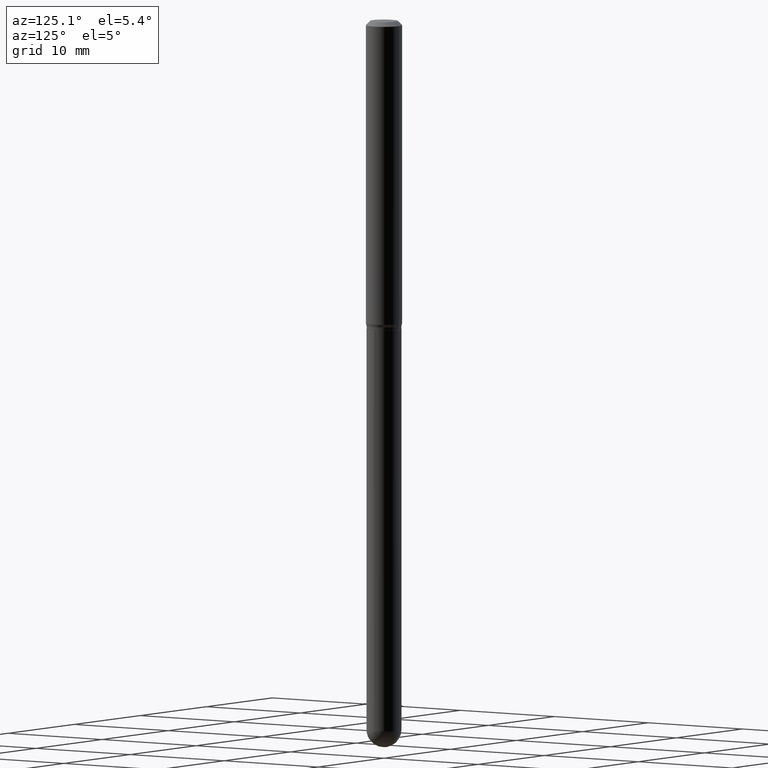
[diagram: clean part render]
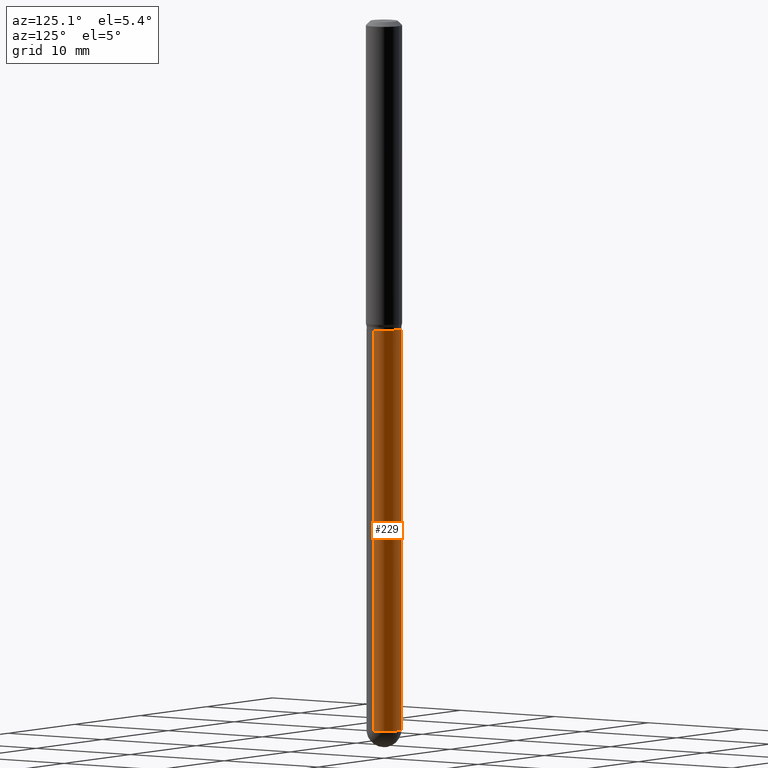
[diagram: same view with one face highlighted and labeled with its STEP entity id]
A machine part, auxiliary view. The second image highlights one B-rep face of the part: STEP entity #229.
In plain terms, the highlighted cylindrical surface (edge-blend (fillet) strip) has radius 1.524 mm, axis along (-0, 0, 1).
Its self-contained STEP definition (entity closure, byte-faithful):
#3 = ORIENTED_EDGE ( 'NONE', *, *, #87, .T. ) ;
#31 = CARTESIAN_POINT ( 'NONE',  ( 5.966943887091733341E-29, -8.519214466777275048E-15, -2.440000000000000391 ) ) ;
#47 = EDGE_CURVE ( 'NONE', #66, #49, #178, .T. ) ;
#49 = VERTEX_POINT ( 'NONE', #469 ) ;
#66 = VERTEX_POINT ( 'NONE', #193 ) ;
#84 = LINE ( 'NONE', #387, #352 ) ;
#87 = EDGE_CURVE ( 'NONE', #104, #49, #84, .T. ) ;
#97 = ORIENTED_EDGE ( 'NONE', *, *, #119, .T. ) ;
#104 = VERTEX_POINT ( 'NONE', #437 ) ;
#106 = ORIENTED_EDGE ( 'NONE', *, *, #482, .T. ) ;
#118 = CARTESIAN_POINT ( 'NONE',  ( 2.592196934556245308E-29, -3.700970219173735083E-15, -1.060000000000000275 ) ) ;
#119 = EDGE_CURVE ( 'NONE', #135, #104, #200, .T. ) ;
#130 = EDGE_CURVE ( 'NONE', #371, #66, #391, .T. ) ;
#135 = VERTEX_POINT ( 'NONE', #308 ) ;
#152 = DIRECTION ( 'NONE',  ( -2.445468806185136597E-29, 3.491481338843145583E-15, 1.000000000000000000 ) ) ;
#154 = EDGE_LOOP ( 'NONE', ( #97, #3, #485, #196, #106 ) ) ;
#155 = DIRECTION ( 'NONE',  ( 1.000000000000000000, -6.982962677686266711E-15, 4.876176775795935793E-29 ) ) ;
#160 = DIRECTION ( 'NONE',  ( -2.445468806185136597E-29, 3.491481338843145583E-15, 1.000000000000000000 ) ) ;
#171 = CARTESIAN_POINT ( 'NONE',  ( 0.06000000000000001166, -6.529070103636681305E-15, -2.440000000000000391 ) ) ;
#178 = CIRCLE ( 'NONE', #374, 0.05999999999999999778 ) ;
#183 = DIRECTION ( 'NONE',  ( -2.445468806185136877E-29, 3.491481338843145188E-15, 1.000000000000000000 ) ) ;
#186 = VECTOR ( 'NONE', #183, 39.37007874015748143 ) ;
#193 = CARTESIAN_POINT ( 'NONE',  ( 0.05999999999999999778, -4.119947979834910928E-15, -1.060000000000000275 ) ) ;
#196 = ORIENTED_EDGE ( 'NONE', *, *, #130, .F. ) ;
#197 = CARTESIAN_POINT ( 'NONE',  ( 0.06000000000000001166, -4.189777606611760914E-16, 2.925706065477562106E-30 ) ) ;
#200 = CIRCLE ( 'NONE', #487, 0.06000000000000001166 ) ;
#229 = ADVANCED_FACE ( 'NONE', ( #478 ), #354, .T. ) ;
#239 = DIRECTION ( 'NONE',  ( -2.445468806185136597E-29, 3.491481338843145583E-15, 1.000000000000000000 ) ) ;
#244 = AXIS2_PLACEMENT_3D ( 'NONE', #512, #160, #155 ) ;
#260 = AXIS2_PLACEMENT_3D ( 'NONE', #317, #280, #468 ) ;
#270 = DIRECTION ( 'NONE',  ( 1.000000000000000000, -6.982962677686266711E-15, 0.000000000000000000 ) ) ;
#280 = DIRECTION ( 'NONE',  ( -2.445468806185136597E-29, 3.491481338843145583E-15, 1.000000000000000000 ) ) ;
#308 = CARTESIAN_POINT ( 'NONE',  ( 4.189777606612345657E-16, 0.05999999999999131722, -2.440000000000000391 ) ) ;
#309 = CIRCLE ( 'NONE', #260, 0.06000000000000001166 ) ;
#313 = DIRECTION ( 'NONE',  ( -2.445468806185136877E-29, 3.491481338843145188E-15, 1.000000000000000000 ) ) ;
#317 = CARTESIAN_POINT ( 'NONE',  ( 5.966943887091733341E-29, -8.519214466777275048E-15, -2.440000000000000391 ) ) ;
#352 = VECTOR ( 'NONE', #313, 39.37007874015748143 ) ;
#354 = CYLINDRICAL_SURFACE ( 'NONE', #244, 0.06000000000000001166 ) ;
#371 = VERTEX_POINT ( 'NONE', #171 ) ;
#374 = AXIS2_PLACEMENT_3D ( 'NONE', #118, #239, #430 ) ;
#387 = CARTESIAN_POINT ( 'NONE',  ( -0.06000000000000001166, 4.263256414560601944E-16, -2.951361054152943763E-30 ) ) ;
#391 = LINE ( 'NONE', #197, #186 ) ;
#430 = DIRECTION ( 'NONE',  ( 1.000000000000000000, -6.982962677686268288E-15, 0.000000000000000000 ) ) ;
#437 = CARTESIAN_POINT ( 'NONE',  ( -0.06000000000000001166, -5.683766701519444970E-15, -2.440000000000000391 ) ) ;
#468 = DIRECTION ( 'NONE',  ( 1.000000000000000000, -6.982962677686266711E-15, 0.000000000000000000 ) ) ;
#469 = CARTESIAN_POINT ( 'NONE',  ( -0.05999999999999999778, -5.683766701519444970E-15, -1.060000000000000275 ) ) ;
#478 = FACE_OUTER_BOUND ( 'NONE', #154, .T. ) ;
#482 = EDGE_CURVE ( 'NONE', #371, #135, #309, .T. ) ;
#485 = ORIENTED_EDGE ( 'NONE', *, *, #47, .F. ) ;
#487 = AXIS2_PLACEMENT_3D ( 'NONE', #31, #152, #270 ) ;
#512 = CARTESIAN_POINT ( 'NONE',  ( 0.000000000000000000, 0.000000000000000000, 0.000000000000000000 ) ) ;